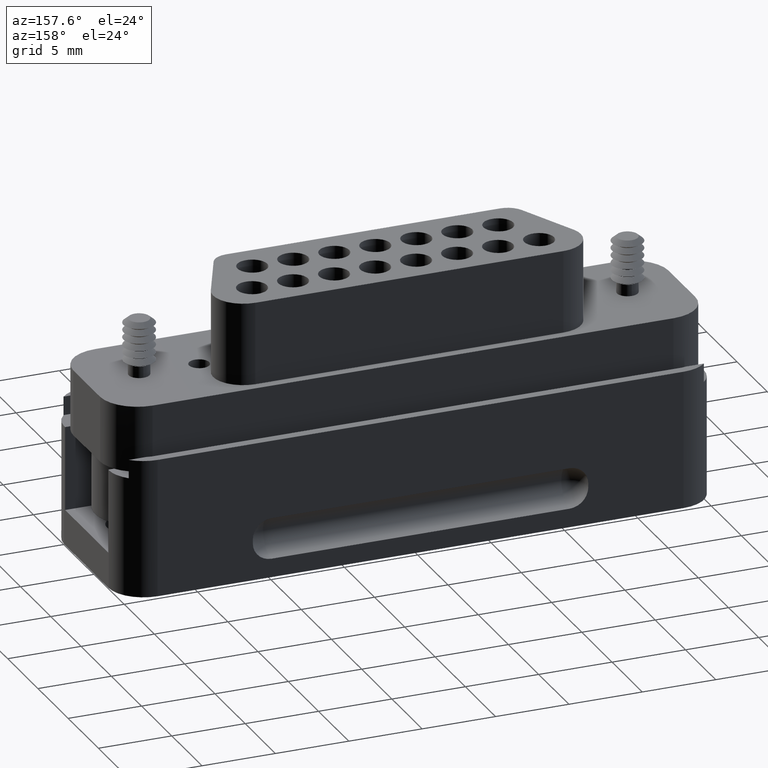
[diagram: clean part render]
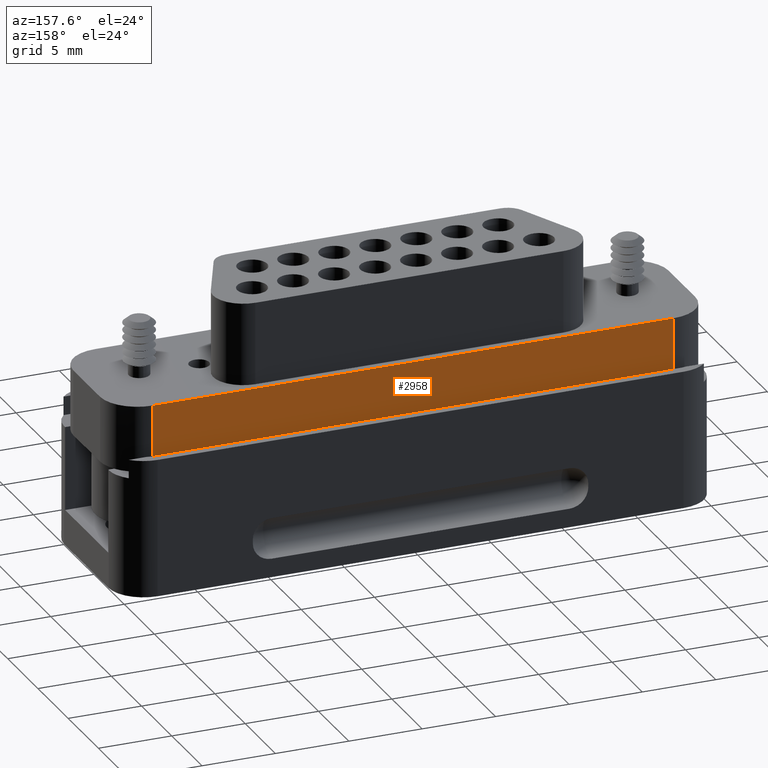
[diagram: same view with one face highlighted and labeled with its STEP entity id]
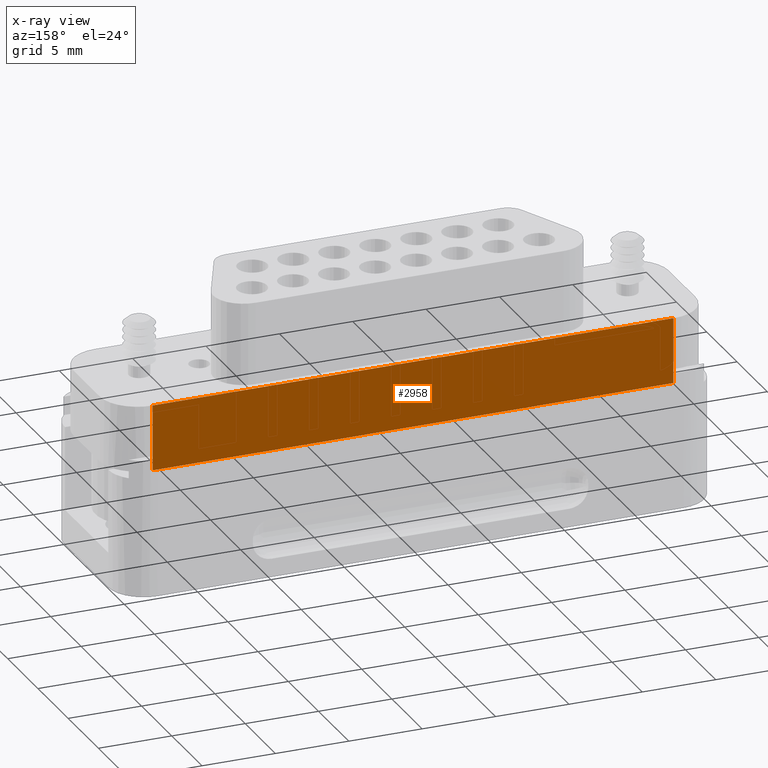
[diagram: x-ray of the same camera — body ghosted, the highlighted face saturated]
A machine part, auxiliary view. The second image highlights one B-rep face of the part: STEP entity #2958.
The next image is the same camera in x-ray: the body ghosted, the highlighted face saturated — about 0% of this face is hidden behind the body in this view.
In plain terms, the highlighted planar face has unit normal (0, -1, 0).
Its self-contained STEP definition (entity closure, byte-faithful):
#834 = EDGE_CURVE ( 'NONE', #2406, #2413, #4226, .T. ) ;
#835 = EDGE_CURVE ( 'NONE', #2507, #2413, #4228, .T. ) ;
#836 = EDGE_CURVE ( 'NONE', #2388, #2507, #4222, .T. ) ;
#837 = EDGE_CURVE ( 'NONE', #2388, #2406, #4220, .T. ) ;
#1492 = FACE_OUTER_BOUND ( 'NONE', #2750, .T. ) ;
#1758 = AXIS2_PLACEMENT_3D ( 'NONE', #4943, #4936, #4935 ) ;
#2388 = VERTEX_POINT ( 'NONE', #5325 ) ;
#2406 = VERTEX_POINT ( 'NONE', #5303 ) ;
#2413 = VERTEX_POINT ( 'NONE', #5299 ) ;
#2507 = VERTEX_POINT ( 'NONE', #5198 ) ;
#2750 = EDGE_LOOP ( 'NONE', ( #4397, #4393, #4401, #4388 ) ) ;
#2958 = ADVANCED_FACE ( 'NONE', ( #1492 ), #4940, .F. ) ;
#3875 = DIRECTION ( 'NONE',  ( -0.0000000000000000000, -0.0000000000000000000, -1.000000000000000000 ) ) ;
#3876 = CARTESIAN_POINT ( 'NONE',  ( 0.9054380629736733500, 0.3873157057703703900, 0.3282459008453934600 ) ) ;
#3877 = DIRECTION ( 'NONE',  ( -1.000000000000000000, -0.0000000000000000000, -0.0000000000000000000 ) ) ;
#3878 = CARTESIAN_POINT ( 'NONE',  ( -0.4915619370263265000, 0.3873157057703703900, 0.3282459008453934600 ) ) ;
#3879 = DIRECTION ( 'NONE',  ( -0.0000000000000000000, -0.0000000000000000000, -1.000000000000000000 ) ) ;
#3880 = DIRECTION ( 'NONE',  ( -1.000000000000000000, -0.0000000000000000000, -0.0000000000000000000 ) ) ;
#3881 = CARTESIAN_POINT ( 'NONE',  ( -0.4915619370263265000, 0.3873157057703703900, 0.1522459008453934900 ) ) ;
#3889 = CARTESIAN_POINT ( 'NONE',  ( -0.4915619370263265000, 0.3873157057703703900, 0.3282459008453934600 ) ) ;
#4217 = VECTOR ( 'NONE', #3875, 39.37007874015748100 ) ;
#4219 = VECTOR ( 'NONE', #3877, 39.37007874015748100 ) ;
#4220 = LINE ( 'NONE', #3876, #4217 ) ;
#4221 = VECTOR ( 'NONE', #3879, 39.37007874015748100 ) ;
#4222 = LINE ( 'NONE', #3878, #4219 ) ;
#4223 = VECTOR ( 'NONE', #3880, 39.37007874015748100 ) ;
#4226 = LINE ( 'NONE', #3881, #4223 ) ;
#4228 = LINE ( 'NONE', #3889, #4221 ) ;
#4388 = ORIENTED_EDGE ( 'NONE', *, *, #837, .T. ) ;
#4393 = ORIENTED_EDGE ( 'NONE', *, *, #835, .F. ) ;
#4397 = ORIENTED_EDGE ( 'NONE', *, *, #834, .T. ) ;
#4401 = ORIENTED_EDGE ( 'NONE', *, *, #836, .F. ) ;
#4935 = DIRECTION ( 'NONE',  ( 0.0000000000000000000, -0.0000000000000000000, -1.000000000000000000 ) ) ;
#4936 = DIRECTION ( 'NONE',  ( 0.0000000000000000000, -1.000000000000000000, 0.0000000000000000000 ) ) ;
#4940 = PLANE ( 'NONE',  #1758 ) ;
#4943 = CARTESIAN_POINT ( 'NONE',  ( -0.4915619370263265000, 0.3873157057703703900, 0.3282459008453934600 ) ) ;
#5198 = CARTESIAN_POINT ( 'NONE',  ( -0.4915619370263265000, 0.3873157057703703900, 0.3282459008453934600 ) ) ;
#5299 = CARTESIAN_POINT ( 'NONE',  ( -0.4915619370263265000, 0.3873157057703703900, 0.1522459008453934900 ) ) ;
#5303 = CARTESIAN_POINT ( 'NONE',  ( 0.9054380629736733500, 0.3873157057703703900, 0.1522459008453934900 ) ) ;
#5325 = CARTESIAN_POINT ( 'NONE',  ( 0.9054380629736733500, 0.3873157057703703900, 0.3282459008453934600 ) ) ;